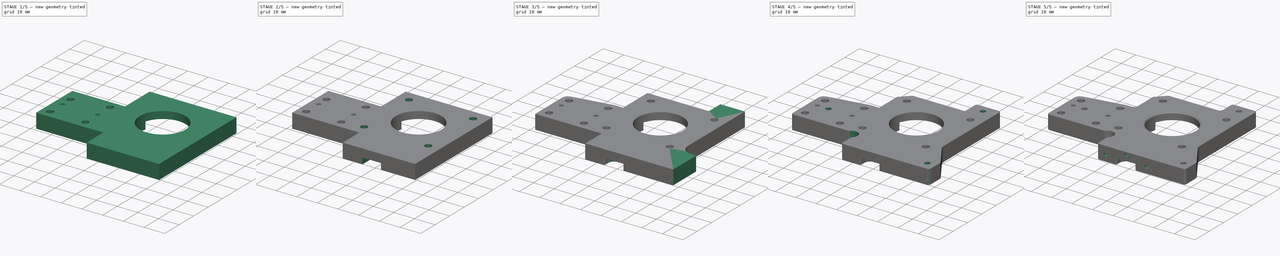
[diagram: build sequence overview — one tinted view per stage of 5, left to right]
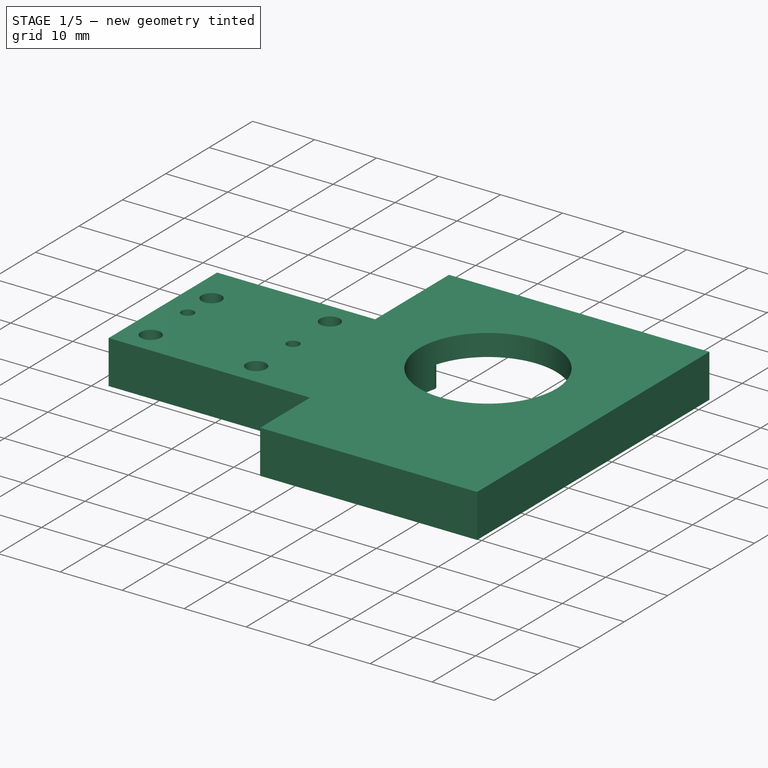
[diagram: stage 1 of 5 — iso view after this stage's code; geometry added in this stage tinted green]
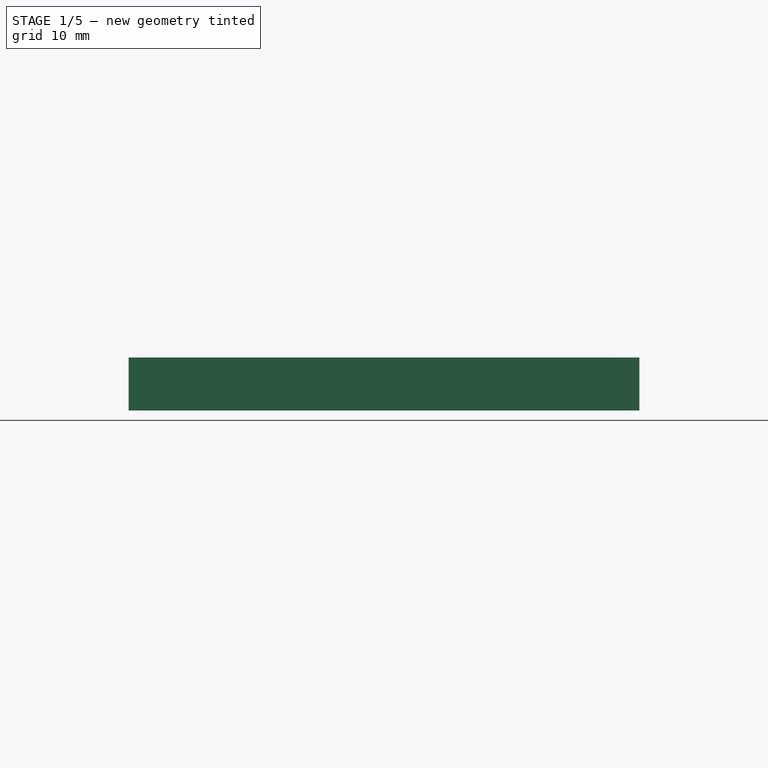
[diagram: stage 1 of 5 — front view after this stage's code; geometry added in this stage tinted green]
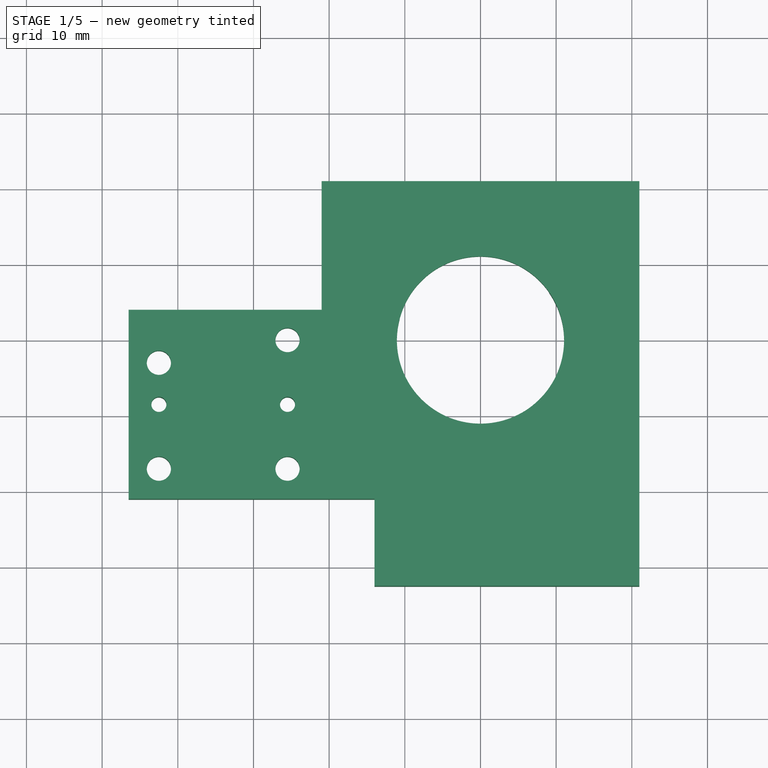
[diagram: stage 1 of 5 — top view after this stage's code; geometry added in this stage tinted green]
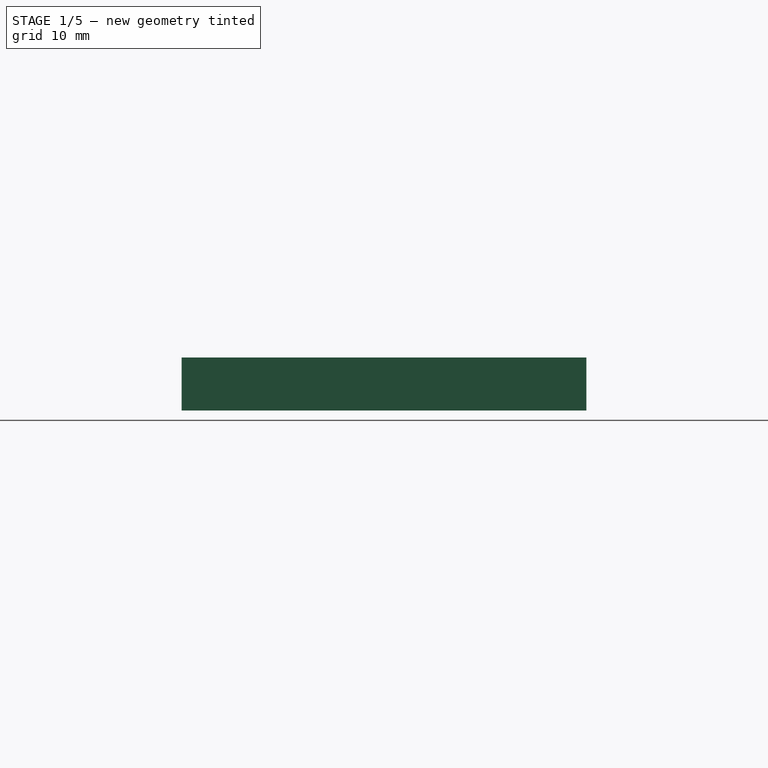
[diagram: stage 1 of 5 — right view after this stage's code; geometry added in this stage tinted green]
FCSTD DOCUMENT  (FreeCAD 1.2R45145 (Git))
Label: MotorMount
License: All rights reserved
LicenseURL: https://en.wikipedia.org/wiki/All_rights_reserved
objects: Sketcher::SketchObject×13, PartDesign::Fillet×13, PartDesign::Pocket×8, PartDesign::Chamfer×7, PartDesign::Pad×4, App::Point×1, PartDesign::PolarPattern×1, PartDesign::Hole×1, PartDesign::Body×1
note: 128 computed .brp shape members not serialized (recipe doc carries the construction recipe); baked Part::Feature solids carry a one-line shape summary decoded from their .brp

FEATURE [App::Point] Origin001
  Role = Origin
FEATURE [Sketcher::SketchObject] Sketch
  ArcFitTolerance = 1e-06
  AttachmentSupport = -> [Origin]
  ExternalTypes = [0]
  FullyConstrained = true
  MakeInternals = false
  MapMode = 5
  sketch-geometry (6):
    g0: LineSegment StartX=-21 StartY=-21 StartZ=0 EndX=21 EndY=-21 EndZ=0
    g1: LineSegment StartX=21 StartY=-21 StartZ=0 EndX=21 EndY=21 EndZ=0
    g2: LineSegment StartX=21 StartY=21 StartZ=0 EndX=-21 EndY=21 EndZ=0
    g3: LineSegment StartX=-21 StartY=21 StartZ=0 EndX=-21 EndY=-21 EndZ=0
    g4: GeomPoint [constr] X=0 Y=0 Z=0
    g5: Circle CenterX=0 CenterY=0 CenterZ=0 NormalX=0 NormalY=0 NormalZ=1 AngleXU=0 Radius=11.05
  constraints (14):
    c: Coincident(g0,g1)
    c: Coincident(g1,g2)
    c: Coincident(g2,g3)
    c: Coincident(g3,g0)
    c: Horizontal(g0)
    c: Horizontal(g2)
    c: Vertical(g1)
    c: Vertical(g3)
    c: Symmetric(g2,g0,g4)
    c: Coincident(g4,g-1)
    c: DistanceX(g2,g2) = 42
    c: DistanceY(g1,g1) = 42
    c: Coincident(g5,g4)
    c: Diameter(g5) = 22.1
FEATURE [PartDesign::Pad] Pad
  Direction = (0,0,1)
  Length = 7
  Length2 = 10
  Profile = -> Sketch
  ReferenceAxis = -> Sketch [N_Axis]
  Refine = true
  SideType = 0
  Suppressed = false
  Type = 0
  Type2 = 0
FEATURE [Sketcher::SketchObject] Sketch002
  ArcFitTolerance = 1e-06
  AttachmentSupport = -> [Pad]
  ExternalTypes = [0]
  FullyConstrained = true
  MakeInternals = false
  MapMode = 5
  Placement = pos=(0,0,0) rot=(1,0,0;3.14159rad)
  sketch-geometry (4):
    g0: LineSegment StartX=-31 StartY=-44 StartZ=0 EndX=9 EndY=-44 EndZ=0
    g1: LineSegment StartX=9 StartY=-44 StartZ=0 EndX=9 EndY=-4 EndZ=0
    g2: LineSegment StartX=9 StartY=-4 StartZ=0 EndX=-31 EndY=-4 EndZ=0
    g3: LineSegment StartX=-31 StartY=-4 StartZ=0 EndX=-31 EndY=-44 EndZ=0
  constraints (12):
    c: Horizontal(g0)
    c: Coincident(g1,g0)
    c: Vertical(g1)
    c: Distance(g1,g-2) = 9
    c: Distance(g2,g-1) = 4
    c: Horizontal(g2)
    c: Coincident(g3,g2)
    c: Coincident(g3,g0)
    c: Vertical(g3)
    c: DistanceX(g0,g0) = 40
    c: Equal(g0,g3)
    c: Coincident(g1,g2)
FEATURE [PartDesign::Pocket] Pocket001
  BaseFeature = -> Pad
  Direction = (0,0,1)
  Length = 3.5
  Length2 = 5
  Profile = -> Sketch002
  ReferenceAxis = -> Sketch002 [N_Axis]
  Refine = true
  SideType = 0
  Suppressed = false
  Type = 0
  Type2 = 0
FEATURE [Sketcher::SketchObject] Sketch003
  ArcFitTolerance = 1e-06
  AttachmentSupport = -> [Origin]
  ExternalGeometry = -> [Pocket001]
  ExternalTypes = [0]
  FullyConstrained = false
  MakeInternals = false
  MapMode = 5
  sketch-geometry (3):
    g0: LineSegment StartX=-21 StartY=4 StartZ=0 EndX=-46.5 EndY=4 EndZ=0
    g1: LineSegment StartX=-46.5 StartY=4 StartZ=0 EndX=-46.5 EndY=-21 EndZ=0
    g2: LineSegment StartX=-46.5 StartY=-21 StartZ=0 EndX=-21 EndY=-21 EndZ=0
  constraints (8):
    c: Horizontal(g0)
    c: Vertical(g1)
    c: Coincident(g2,g1)
    c: Horizontal(g2)
    c: Coincident(g0,g1)
    c: DistanceX(g0,g0) = 25.5
    c: Coincident(g0,g-3)
    c: DistanceY(g1,g1) = 25
FEATURE [PartDesign::Pad] Pad001
  BaseFeature = -> Pocket001
  Direction = (0,0,1)
  Length = 7
  Length2 = 10
  Profile = -> Sketch003
  ReferenceAxis = -> Sketch003 [N_Axis]
  Refine = true
  SideType = 0
  Suppressed = false
  Type = 0
  Type2 = 0
FEATURE [Sketcher::SketchObject] Sketch004
  ArcFitTolerance = 1e-06
  AttachmentSupport = -> [Pad001]
  ExternalGeometry = -> [Pad001]
  ExternalTypes = [0]
  FullyConstrained = true
  MakeInternals = false
  MapMode = 5
  Placement = pos=(0,0,0) rot=(1,0,0;3.14159rad)
  sketch-geometry (13):
    g0: Circle CenterX=-42.5 CenterY=17 CenterZ=0 NormalX=0 NormalY=0 NormalZ=1 AngleXU=0 Radius=1.6
    g1: Circle CenterX=-25.5 CenterY=17 CenterZ=0 NormalX=0 NormalY=0 NormalZ=1 AngleXU=0 Radius=1.6
    g2: Circle CenterX=-42.5 CenterY=3 CenterZ=0 NormalX=0 NormalY=0 NormalZ=1 AngleXU=0 Radius=1.6
    g3: Circle CenterX=-25.5 CenterY=0 CenterZ=0 NormalX=0 NormalY=0 NormalZ=1 AngleXU=0 Radius=1.6
    g4: LineSegment [constr] StartX=-42.5 StartY=17 StartZ=0 EndX=-42.5 EndY=0 EndZ=0
    g5: LineSegment [constr] StartX=-42.5 StartY=0 StartZ=0 EndX=-25.5 EndY=0 EndZ=0
    g6: LineSegment [constr] StartX=-25.5 StartY=0 StartZ=0 EndX=-25.5 EndY=17 EndZ=0
    g7: LineSegment [constr] StartX=-25.5 StartY=17 StartZ=0 EndX=-42.5 EndY=17 EndZ=0
    g8: GeomPoint [constr] X=-42.5 Y=8.5 Z=0
    g9: GeomPoint [constr] X=-46.5 Y=8.5 Z=0
    g10: LineSegment [constr] StartX=-46.5 StartY=8.5 StartZ=0 EndX=-42.5 EndY=8.5 EndZ=0
    g11: Circle CenterX=-42.5 CenterY=8.5 CenterZ=0 NormalX=0 NormalY=0 NormalZ=1 AngleXU=0 Radius=1
    g12: Circle CenterX=-25.5 CenterY=8.5 CenterZ=0 NormalX=0 NormalY=0 NormalZ=1 AngleXU=0 Radius=1
  constraints (29):
    c: Equal(g0,g1)
    c: Equal(g1,g2)
    c: Equal(g2,g3)
    c: Diameter(g0) = 3.2
    c: DistanceX(g0,g1) = 17
    c: Coincident(g4,g0)
    c: Vertical(g4)
    c: Coincident(g5,g3)
    c: Horizontal(g5)
    c: Coincident(g6,g3)
    c: Coincident(g6,g1)
    c: Coincident(g7,g1)
    c: Coincident(g7,g0)
    c: Horizontal(g7)
    c: Vertical(g6)
    c: Coincident(g10,g9)
    c: Coincident(g10,g8)
    c: Horizontal(g10)
    c: Symmetric(g6,g6,g12)
    c: Coincident(g11,g8)
    c: Equal(g11,g12)
    c: Diameter(g12) = 2
    c: Symmetric(g-3,g-3,g9)
    c: Distance(g-3,g4) = 4
    c: Distance(g5,g7) = 17
    c: Coincident(g4,g5)
    c: Symmetric(g4,g4,g8)
    c: Distance(g2,g5) = 3
    c: PointOnObject(g2,g4)
FEATURE [PartDesign::Fillet] Fillet
  Base = -> Pad001 [Edge4,Edge2]
  BaseFeature = -> Pad001
  Radius = 1
  Refine = true
  SupportTransform = false
  Suppressed = false
  UseAllEdges = false
FEATURE [PartDesign::Pocket] Pocket002  label="Pocket_BaseMountHoles"
  BaseFeature = -> Fillet
  Direction = (0,0,1)
  Length = 5
  Length2 = 5
  Profile = -> Sketch004
  ReferenceAxis = -> Sketch004 [N_Axis]
  Refine = true
  SideType = 0
  Suppressed = false
  Type = 1
  Type2 = 0
FEATURE [PartDesign::Chamfer] Chamfer001
  Angle = 45
  Base = -> Pocket002 [Edge21,Edge23,Edge19,Edge18]
  BaseFeature = -> Pocket002
  ChamferType = 0
  FlipDirection = false
  Refine = true
  Size = 1.8
  Size2 = 1
  SupportTransform = false
  Suppressed = false
  UseAllEdges = false
FEATURE [Sketcher::SketchObject] Sketch005
  ArcFitTolerance = 1e-06
  AttachmentSupport = -> [Origin]
  ExternalGeometry = -> [Chamfer001]
  ExternalTypes = [0]
  FullyConstrained = true
  MakeInternals = false
  MapMode = 5
  sketch-geometry (4):
    g0: LineSegment StartX=-14 StartY=-32.5 StartZ=0 EndX=21 EndY=-32.5 EndZ=0
    g1: LineSegment StartX=21 StartY=-32.5 StartZ=0 EndX=21 EndY=-21 EndZ=0
    g2: LineSegment StartX=21 StartY=-21 StartZ=0 EndX=-14 EndY=-21 EndZ=0
    g3: LineSegment StartX=-14 StartY=-32.5 StartZ=0 EndX=-14 EndY=-21 EndZ=0
  constraints (11):
    c: Coincident(g0,g1)
    c: Coincident(g1,g2)
    c: Vertical(g1)
    c: Horizontal(g0)
    c: Horizontal(g2)
    c: Distance(g-1,g0) = 32.5
    c: Coincident(g3,g0)
    c: Vertical(g3)
    c: Coincident(g2,g3)
    c: Distance(g-2,g3) = 14
    c: Coincident(g1,g-4)
FEATURE [PartDesign::Pad] Pad002
  BaseFeature = -> Chamfer001
  Direction = (0,0,1)
  Length = 7
  Length2 = 10
  Profile = -> Sketch005
  ReferenceAxis = -> Sketch005 [N_Axis]
  Refine = true
  SideType = 0
  Suppressed = false
  Type = 0
  Type2 = 0
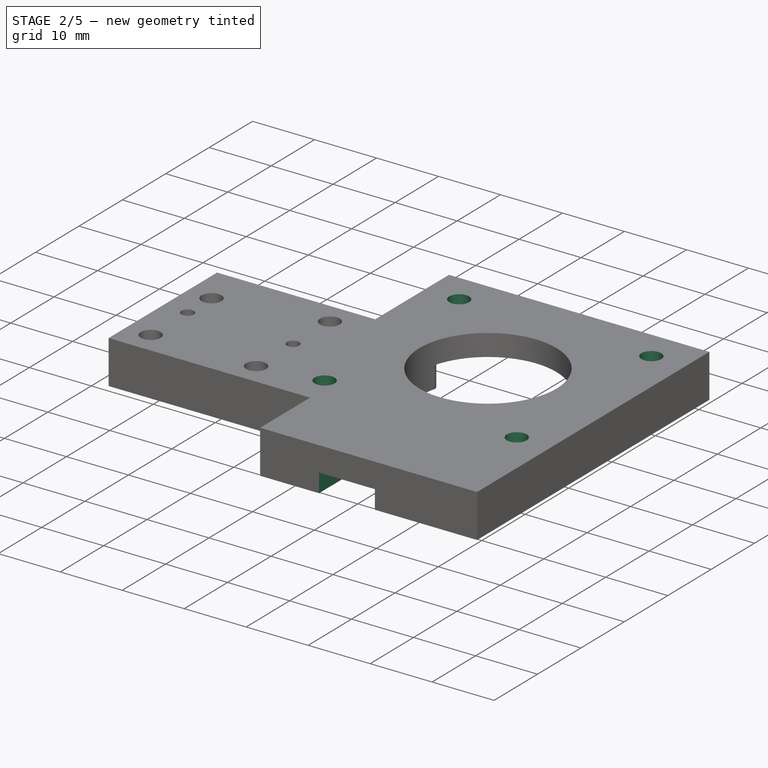
[diagram: stage 2 of 5 — iso view after this stage's code; geometry added in this stage tinted green]
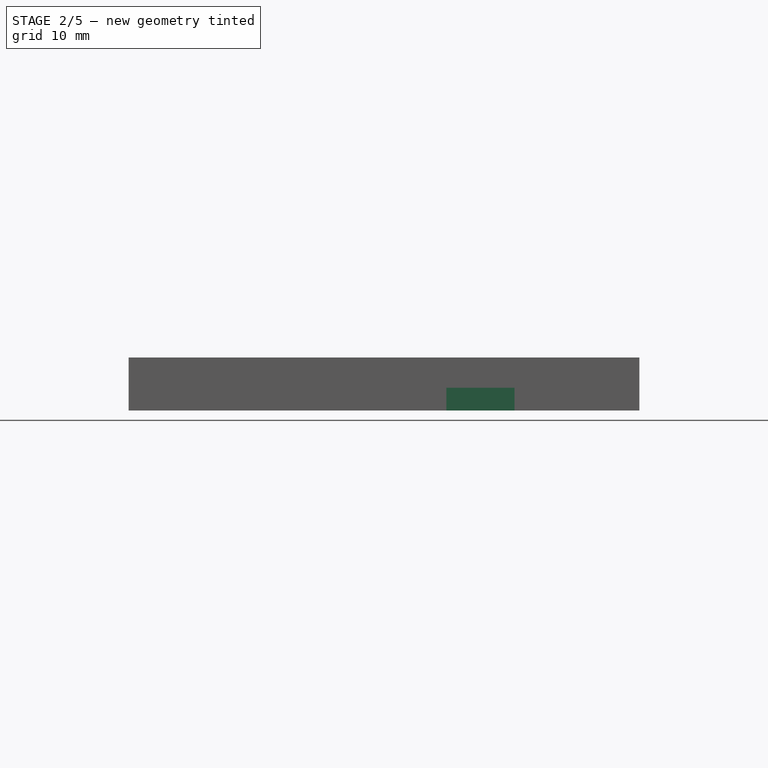
[diagram: stage 2 of 5 — front view after this stage's code; geometry added in this stage tinted green]
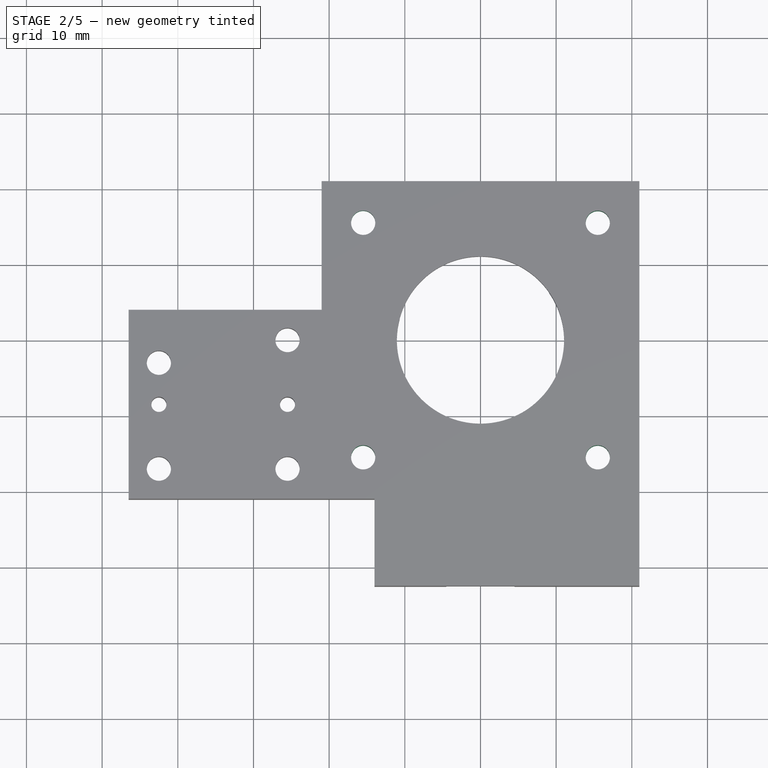
[diagram: stage 2 of 5 — top view after this stage's code; geometry added in this stage tinted green]
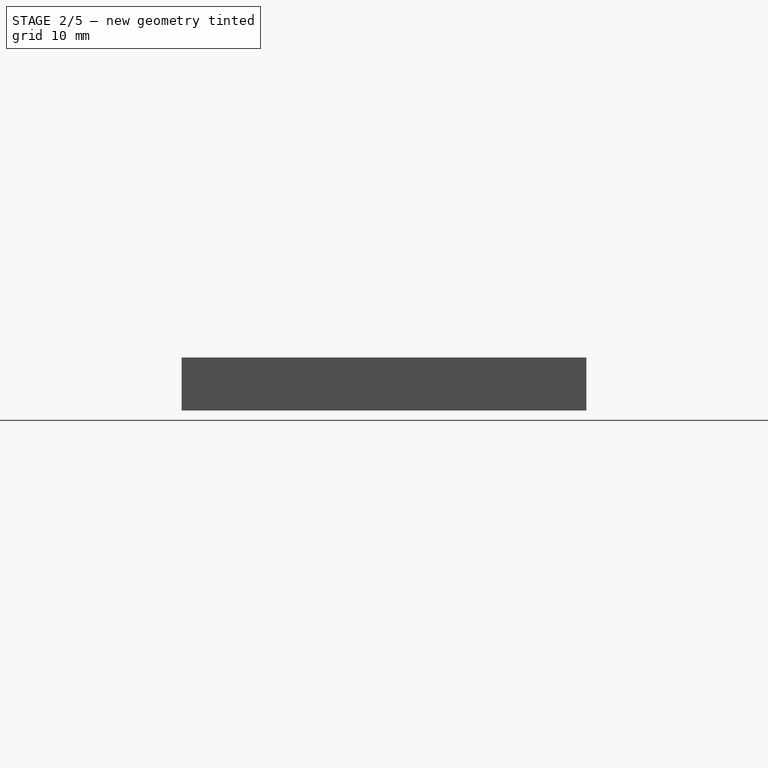
[diagram: stage 2 of 5 — right view after this stage's code; geometry added in this stage tinted green]
FEATURE [Sketcher::SketchObject] Sketch007
  ArcFitTolerance = 1e-06
  AttachmentSupport = -> [Pad002]
  ExternalTypes = [0]
  FullyConstrained = true
  MakeInternals = false
  MapMode = 5
  Placement = pos=(0,0,0) rot=(1,0,0;3.14159rad)
  sketch-geometry (1):
    g0: Circle CenterX=-15.5 CenterY=15.5 CenterZ=0 NormalX=0 NormalY=0 NormalZ=1 AngleXU=0 Radius=1.6
  constraints (3):
    c: Diameter(g0) = 3.2
    c: DistanceX(g0,g-1) = 15.5
    c: DistanceY(g-1,g0) = 15.5
FEATURE [PartDesign::Pocket] Pocket  label="Pocket_MotorScrewHole"
  BaseFeature = -> Pad002
  Direction = (0,0,1)
  Length = 4
  Length2 = 5
  Profile = -> Sketch007
  ReferenceAxis = -> Sketch007 [N_Axis]
  Refine = true
  SideType = 0
  Suppressed = false
  Type = 1
  Type2 = 0
FEATURE [PartDesign::Chamfer] Chamfer002
  Angle = 45
  Base = -> Pocket [Edge20]
  BaseFeature = -> Pocket
  ChamferType = 0
  FlipDirection = false
  Refine = true
  Size = 1.8
  Size2 = 1
  SupportTransform = false
  Suppressed = false
  UseAllEdges = false
FEATURE [PartDesign::PolarPattern] PolarPattern
  Angle = 360
  Axis = -> Z_Axis
  BaseFeature = -> Chamfer002
  Mode = 0
  Occurrences = 4
  Offset = 120
  Originals = -> [Pocket,Chamfer002]
  Refine = true
  SpacingPattern = [0]
  Spacings = [-1,-1,-1]
  Suppressed = false
  TransformMode = 0
FEATURE [Sketcher::SketchObject] Sketch008
  ArcFitTolerance = 1e-06
  AttachmentSupport = -> [PolarPattern]
  ExternalTypes = [0]
  FullyConstrained = false
  MakeInternals = false
  MapMode = 5
  Placement = pos=(0,0,0) rot=(1,0,0;3.14159rad)
  sketch-geometry (5):
    g0: LineSegment [constr] StartX=0 StartY=0 StartZ=0 EndX=-13.1101 EndY=14.5603 EndZ=0
    g1: LineSegment [constr] StartX=0 StartY=0 StartZ=0 EndX=11.8102 EndY=13.1165 EndZ=0
    g2: ArcOfCircle CenterX=0 CenterY=0 CenterZ=0 NormalX=0 NormalY=0 NormalZ=1 AngleXU=0 Radius=16 StartAngle=0.775217 EndAngle=2.36638
    g3: LineSegment StartX=0 StartY=-1.49448 StartZ=0 EndX=11.4283 EndY=11.1979 EndZ=0
    g4: LineSegment StartX=0 StartY=-1.49448 StartZ=0 EndX=-11.4283 EndY=11.1979 EndZ=0
  constraints (13):
    c: Coincident(g0,g-1)
    c: Coincident(g1,g0)
    c: Coincident(g2,g0)
    c: Angle(g1,g-2) = 0.733038
    c: Angle(g1,g0) = 1.46608
    c: PointOnObject(g3,g-2)
    c: Coincident(g4,g3)
    c: Parallel(g4,g0)
    c: Parallel(g3,g1)
    c: Coincident(g3,g2)
    c: Radius(g2) = 16
    c: Coincident(g4,g2)
    c: Distance(g0,g4) = 1
FEATURE [PartDesign::Pocket] Pocket004  label="Pocket_Arc"
  BaseFeature = -> PolarPattern
  Direction = (0,0,1)
  Length = 2
  Length2 = 5
  Profile = -> Sketch008
  ReferenceAxis = -> Sketch008 [N_Axis]
  Refine = true
  SideType = 0
  Suppressed = false
  Type = 0
  Type2 = 0
FEATURE [PartDesign::Fillet] Fillet004
  Base = -> Pocket004 [Edge59,Edge61]
  BaseFeature = -> Pocket004
  Radius = 1.6
  Refine = true
  SupportTransform = false
  Suppressed = false
  UseAllEdges = false
FEATURE [PartDesign::Fillet] Fillet005
  Base = -> Fillet004 [Edge38,Edge29]
  BaseFeature = -> Fillet004
  Radius = 1
  Refine = true
  SupportTransform = false
  Suppressed = false
  UseAllEdges = false
FEATURE [Sketcher::SketchObject] Sketch009
  ArcFitTolerance = 1e-06
  AttachmentSupport = -> [Fillet005]
  ExternalTypes = [0]
  FullyConstrained = false
  MakeInternals = false
  MapMode = 5
  Placement = pos=(0,0,0) rot=(1,0,0;3.14159rad)
  sketch-geometry (5):
    g0: LineSegment StartX=-4.5 StartY=48.3086 StartZ=0 EndX=-4.5 EndY=27 EndZ=0
    g1: LineSegment StartX=-4.5 StartY=27 StartZ=0 EndX=4.5 EndY=27 EndZ=0
    g2: LineSegment StartX=4.5 StartY=27 StartZ=0 EndX=4.5 EndY=48.3086 EndZ=0
    g3: LineSegment StartX=4.5 StartY=48.3086 StartZ=0 EndX=-4.5 EndY=48.3086 EndZ=0
    g4: GeomPoint [constr] X=0 Y=37.6543 Z=0
  constraints (12):
    c: Coincident(g0,g1)
    c: Coincident(g1,g2)
    c: Coincident(g2,g3)
    c: Coincident(g3,g0)
    c: Vertical(g0)
    c: Vertical(g2)
    c: Horizontal(g1)
    c: Horizontal(g3)
    c: Symmetric(g2,g0,g4)
    c: PointOnObject(g4,g-2)
    c: Distance(g-1,g1) = 27
    c: DistanceX(g3,g3) = 9
FEATURE [PartDesign::Pocket] Pocket005  label="Pocket_EncoderCutout"
  BaseFeature = -> Fillet005
  Direction = (0,0,1)
  Length = 3
  Length2 = 5
  Profile = -> Sketch009
  ReferenceAxis = -> Sketch009 [N_Axis]
  Refine = true
  SideType = 0
  Suppressed = false
  Type = 0
  Type2 = 0
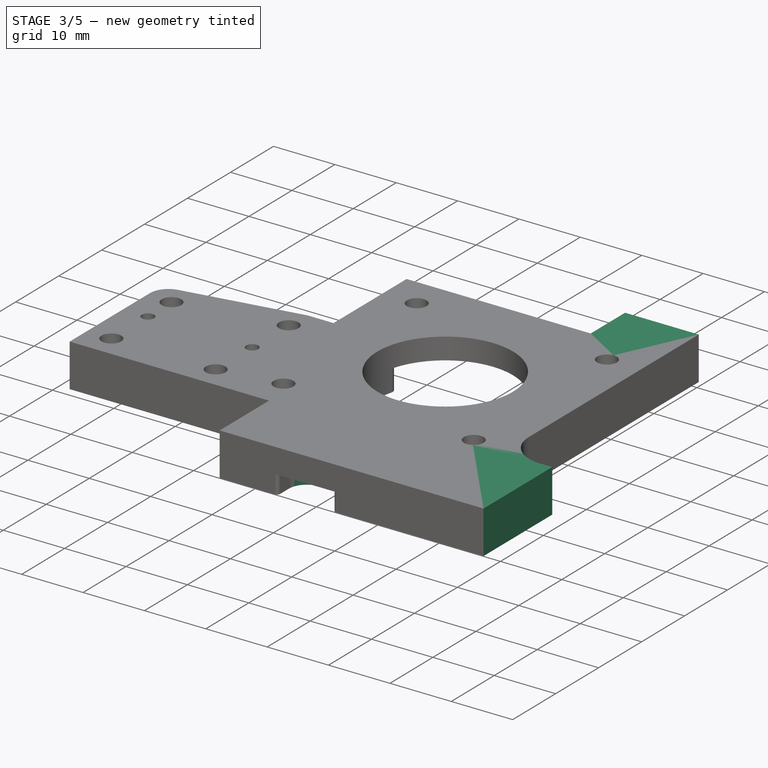
[diagram: stage 3 of 5 — iso view after this stage's code; geometry added in this stage tinted green]
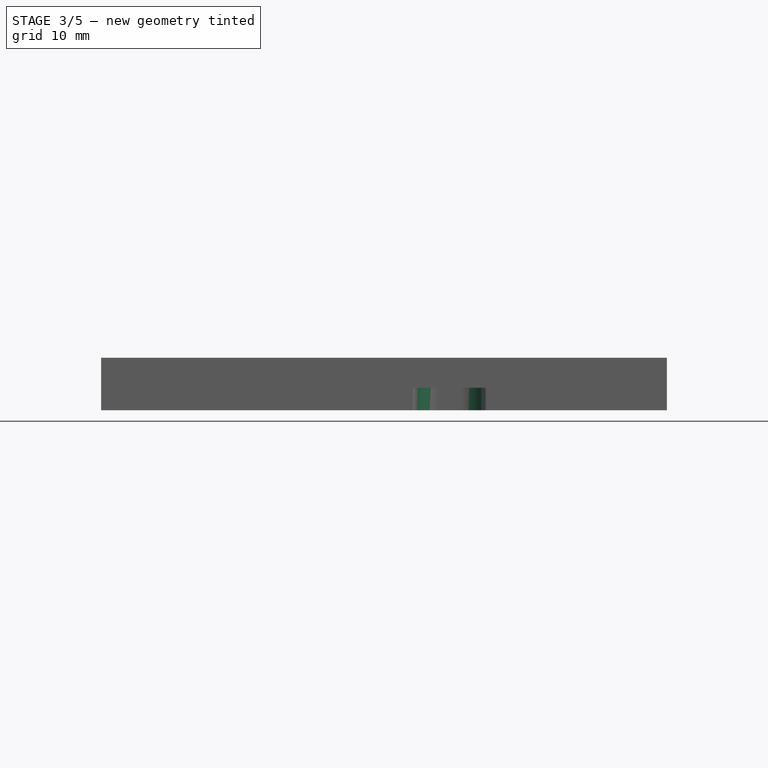
[diagram: stage 3 of 5 — front view after this stage's code; geometry added in this stage tinted green]
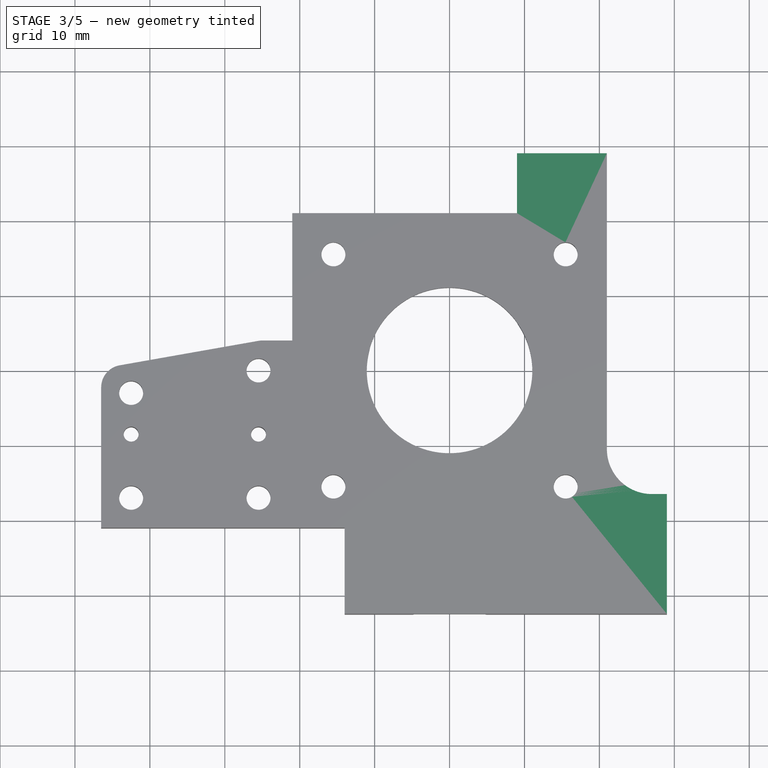
[diagram: stage 3 of 5 — top view after this stage's code; geometry added in this stage tinted green]
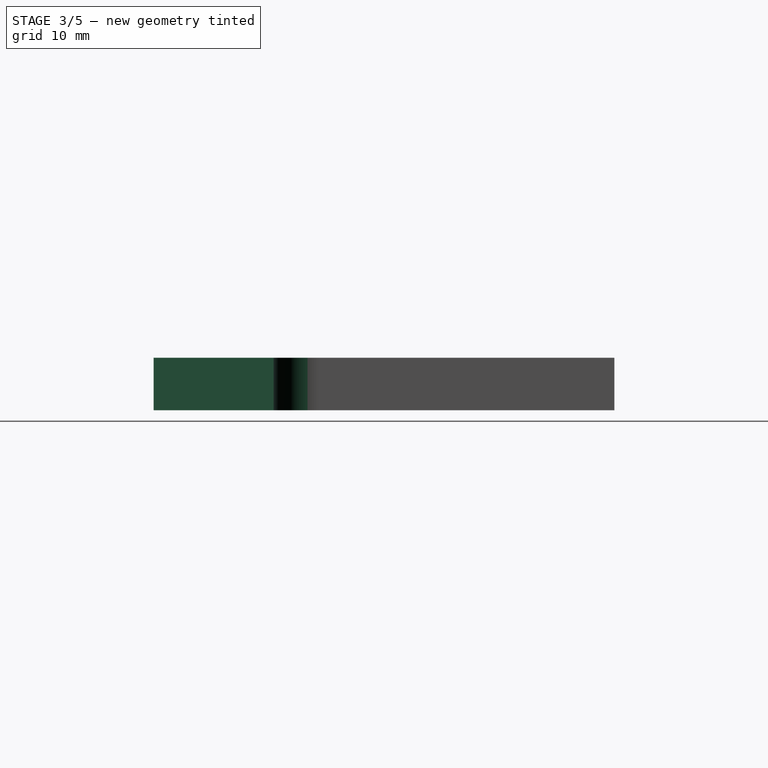
[diagram: stage 3 of 5 — right view after this stage's code; geometry added in this stage tinted green]
FEATURE [Sketcher::SketchObject] Sketch010
  ArcFitTolerance = 1e-06
  AttachmentSupport = -> [Origin]
  ExternalGeometry = -> [Pocket005]
  ExternalTypes = [0,0,0]
  FullyConstrained = true
  MakeInternals = false
  MapMode = 5
  sketch-geometry (8):
    g0: LineSegment StartX=21 StartY=21 StartZ=0 EndX=21 EndY=29 EndZ=0
    g1: LineSegment StartX=21 StartY=29 StartZ=0 EndX=9 EndY=29 EndZ=0
    g2: LineSegment StartX=9 StartY=29 StartZ=0 EndX=9 EndY=21 EndZ=0
    g3: LineSegment StartX=9 StartY=21 StartZ=0 EndX=21 EndY=21 EndZ=0
    g4: LineSegment StartX=21 StartY=-32.5 StartZ=0 EndX=29 EndY=-32.5 EndZ=0
    g5: LineSegment StartX=29 StartY=-32.5 StartZ=0 EndX=29 EndY=-16.5 EndZ=0
    g6: LineSegment StartX=29 StartY=-16.5 StartZ=0 EndX=21 EndY=-16.5 EndZ=0
    g7: LineSegment StartX=21 StartY=-16.5 StartZ=0 EndX=21 EndY=-32.5 EndZ=0
  constraints (22):
    c: Coincident(g0,g1)
    c: Coincident(g1,g2)
    c: Coincident(g2,g3)
    c: Coincident(g3,g0)
    c: Vertical(g0)
    c: Vertical(g2)
    c: Horizontal(g1)
    c: Horizontal(g3)
    c: Coincident(g0,g-3)
    c: PointOnObject(g-4,g2)
    c: DistanceY(g0,g0) = 8
    c: Coincident(g4,g5)
    c: Coincident(g5,g6)
    c: Coincident(g6,g7)
    c: Coincident(g7,g4)
    c: Horizontal(g4)
    c: Horizontal(g6)
    c: Vertical(g5)
    c: Vertical(g7)
    c: Coincident(g4,g-5)
    c: DistanceX(g4,g4) = 8
    c: DistanceY(g5,g5) = 16
FEATURE [PartDesign::Pad] Pad003
  BaseFeature = -> Pocket005
  Direction = (0,0,1)
  Length = 7
  Length2 = 10
  Profile = -> Sketch010
  ReferenceAxis = -> Sketch010 [N_Axis]
  Refine = true
  SideType = 0
  Suppressed = false
  Type = 0
  Type2 = 0
FEATURE [PartDesign::Fillet] Fillet006
  Base = -> Pad003 [Edge91]
  BaseFeature = -> Pad003
  Radius = 6
  Refine = true
  SupportTransform = false
  Suppressed = false
  UseAllEdges = false
FEATURE [PartDesign::Chamfer] Chamfer006
  Angle = 80
  Base = -> Fillet006 [Edge89]
  BaseFeature = -> Fillet006
  ChamferType = 2
  FlipDirection = false
  Refine = true
  Size = 3.75
  Size2 = 1
  SupportTransform = false
  Suppressed = false
  UseAllEdges = false
FEATURE [PartDesign::Fillet] Fillet018
  Base = -> Chamfer006 [Edge41,Edge38]
  BaseFeature = -> Chamfer006
  Radius = 3
  Refine = true
  SupportTransform = false
  Suppressed = false
  UseAllEdges = false
FEATURE [PartDesign::Fillet] Fillet014
  Base = -> Fillet018 [Edge66,Edge62]
  BaseFeature = -> Fillet018
  Radius = 3
  Refine = true
  SupportTransform = false
  Suppressed = false
  UseAllEdges = false
FEATURE [PartDesign::Fillet] Fillet015
  Base = -> Fillet014 [Edge43,Edge48]
  BaseFeature = -> Fillet014
  Radius = 0.5
  Refine = true
  SupportTransform = false
  Suppressed = false
  UseAllEdges = false
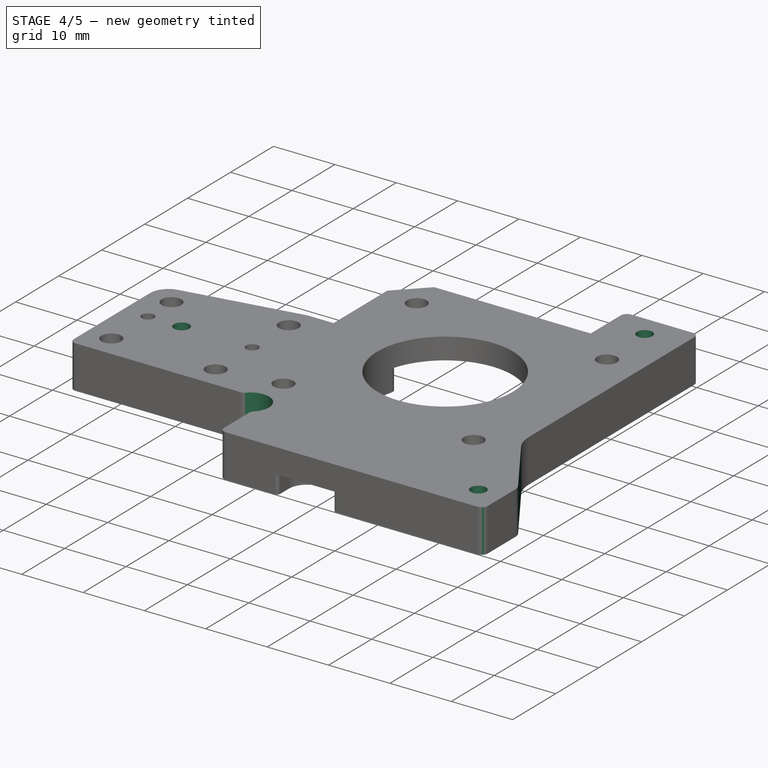
[diagram: stage 4 of 5 — iso view after this stage's code; geometry added in this stage tinted green]
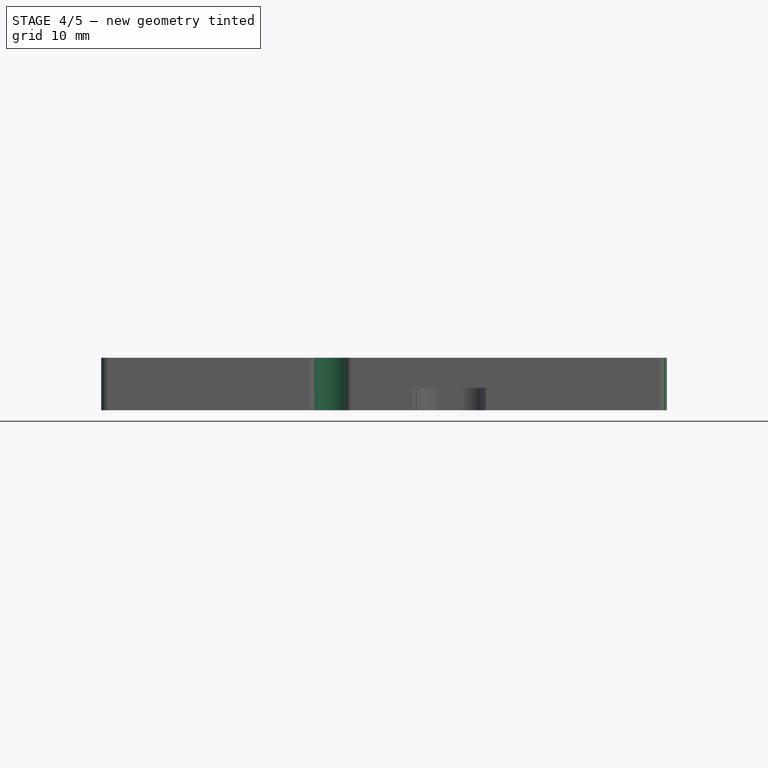
[diagram: stage 4 of 5 — front view after this stage's code; geometry added in this stage tinted green]
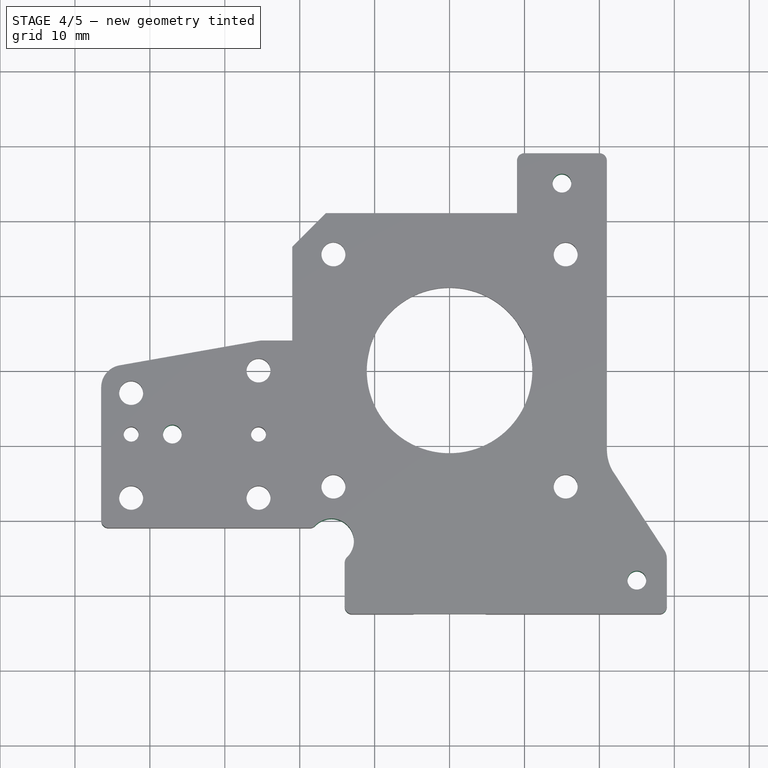
[diagram: stage 4 of 5 — top view after this stage's code; geometry added in this stage tinted green]
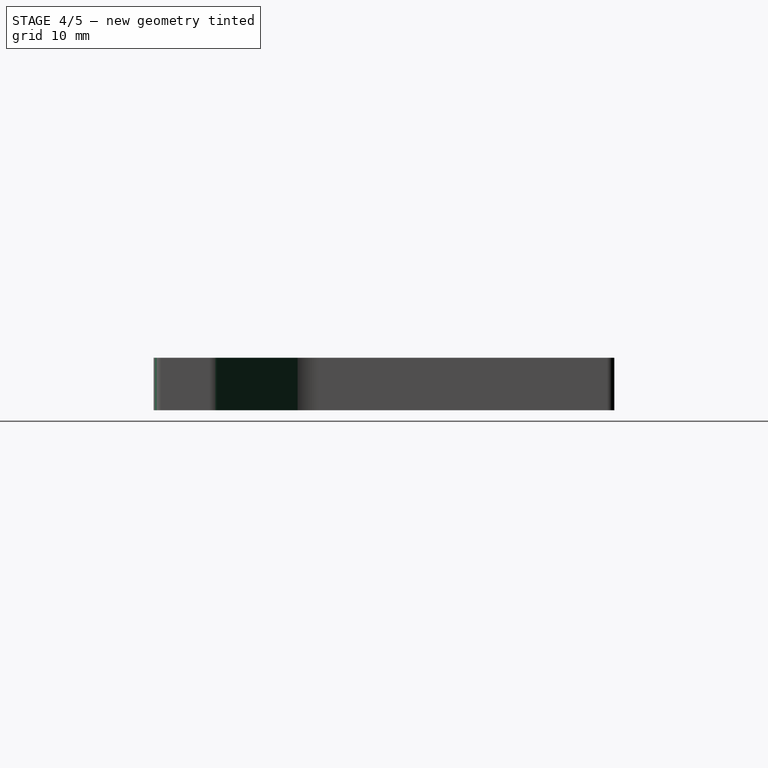
[diagram: stage 4 of 5 — right view after this stage's code; geometry added in this stage tinted green]
FEATURE [Sketcher::SketchObject] Sketch012
  ArcFitTolerance = 1e-06
  AttachmentSupport = -> [Fillet015]
  ExternalGeometry = -> [Fillet015]
  ExternalTypes = [0]
  FullyConstrained = true
  MakeInternals = false
  MapMode = 5
  Placement = pos=(0,0,0) rot=(1,0,0;3.14159rad)
  sketch-geometry (5):
    g0: ArcOfCircle CenterX=-15.7678 CenterY=22.7678 CenterZ=0 NormalX=0 NormalY=0 NormalZ=1 AngleXU=0 Radius=3 StartAngle=3.92699 EndAngle=7.06858
    g1: ArcOfCircle CenterX=-22.8388 CenterY=29.8388 CenterZ=0 NormalX=0 NormalY=0 NormalZ=1 AngleXU=0 Radius=3 StartAngle=0.785398 EndAngle=3.92699
    g2: LineSegment StartX=-17.8891 StartY=20.6464 StartZ=0 EndX=-24.9602 EndY=27.7175 EndZ=0
    g3: LineSegment StartX=-13.6464 StartY=24.8891 StartZ=0 EndX=-20.7175 EndY=31.9602 EndZ=0
    g4: LineSegment [constr] StartX=-15.7678 StartY=22.7678 StartZ=0 EndX=-14 EndY=21 EndZ=0
  constraints (12):
    c: Tangent(g0,g2) = 1.5708
    c: Tangent(g0,g3) = -1.5708
    c: Tangent(g1,g2) = 1.5708
    c: Tangent(g1,g3) = -1.5708
    c: Equal(g0,g1)
    c: Radius(g0) = 3
    c: Coincident(g4,g0)
    c: Angle(g4,g-1) = 0.785398
    c: Distance(g4,g4) = 2.5
    c: Distance(g3,g3) = 10
    c: PointOnObject(g1,g4)
    c: Coincident(g4,g-3)
FEATURE [PartDesign::Pocket] Pocket007
  BaseFeature = -> Fillet015
  Direction = (0,0,1)
  Length = 9
  Length2 = 5
  Profile = -> Sketch012
  ReferenceAxis = -> Sketch012 [N_Axis]
  Refine = true
  SideType = 0
  Suppressed = false
  Type = 0
  Type2 = 0
FEATURE [PartDesign::Fillet] Fillet017
  Base = -> Pocket007 [Edge127,Edge122]
  BaseFeature = -> Pocket007
  Radius = 1
  Refine = true
  SupportTransform = false
  Suppressed = false
  UseAllEdges = false
FEATURE [Sketcher::SketchObject] Sketch011
  ArcFitTolerance = 1e-06
  AttachmentSupport = -> [Fillet017]
  ExternalGeometry = -> [Fillet017]
  ExternalTypes = [0,0]
  FullyConstrained = true
  MakeInternals = false
  MapMode = 5
  Placement = pos=(0,0,0) rot=(1,0,0;3.14159rad)
  sketch-geometry (5):
    g0: Circle CenterX=25 CenterY=28 CenterZ=0 NormalX=0 NormalY=0 NormalZ=1 AngleXU=0 Radius=1.25
    g1: Circle CenterX=15 CenterY=-25 CenterZ=0 NormalX=0 NormalY=0 NormalZ=1 AngleXU=0 Radius=1.25
    g2: Circle CenterX=-37 CenterY=8.5 CenterZ=0 NormalX=0 NormalY=0 NormalZ=1 AngleXU=0 Radius=1.25
    g3: LineSegment [constr] StartX=-42.5 StartY=8.5 StartZ=0 EndX=-25.5 EndY=8.5 EndZ=0
    g4: Circle [constr] CenterX=-37 CenterY=8.5 CenterZ=0 NormalX=0 NormalY=0 NormalZ=1 AngleXU=0 Radius=4
  constraints (14):
    c: Diameter(g0) = 2.5
    c: Equal(g2,g0)
    c: Equal(g0,g1)
    c: DistanceX(g-1,g1) = 15
    c: DistanceY(g1,g-1) = 25
    c: DistanceX(g-1,g0) = 25
    c: DistanceY(g-1,g0) = 28
    c: DistanceX(g2,g-1) = 37
    c: Coincident(g3,g-4)
    c: Coincident(g3,g-3)
    c: PointOnObject(g2,g3)
    c: Distance(g-1,g3) = 8.5
    c: Coincident(g4,g2)
    c: Diameter(g4) = 8
FEATURE [PartDesign::Pocket] Pocket006  label="Pocket_MountHoles"
  BaseFeature = -> Fillet017
  Direction = (0,0,1)
  Length = 5
  Length2 = 5
  Profile = -> Sketch011
  ReferenceAxis = -> Sketch011 [N_Axis]
  Refine = true
  SideType = 0
  Suppressed = false
  Type = 1
  Type2 = 0
FEATURE [PartDesign::Chamfer] Chamfer004
  Angle = 45
  Base = -> Pocket006 [Edge125]
  BaseFeature = -> Pocket006
  ChamferType = 0
  FlipDirection = false
  Refine = true
  Size = 8
  Size2 = 1
  SupportTransform = false
  Suppressed = false
  UseAllEdges = false
FEATURE [PartDesign::Fillet] Fillet011
  Base = -> Chamfer004 [Edge52]
  BaseFeature = -> Chamfer004
  Radius = 2
  Refine = true
  SupportTransform = false
  Suppressed = false
  UseAllEdges = false
FEATURE [PartDesign::Fillet] Fillet019
  Base = -> Fillet011 [Edge73,Edge77,Edge129,Edge59,Edge54]
  BaseFeature = -> Fillet011
  Radius = 1
  Refine = true
  SupportTransform = false
  Suppressed = false
  UseAllEdges = false
FEATURE [PartDesign::Chamfer] Chamfer
  Angle = 45
  Base = -> Fillet019 [Edge195]
  BaseFeature = -> Fillet019
  ChamferType = 0
  FlipDirection = false
  Refine = true
  Size = 4.5
  Size2 = 1
  SupportTransform = false
  Suppressed = false
  UseAllEdges = false
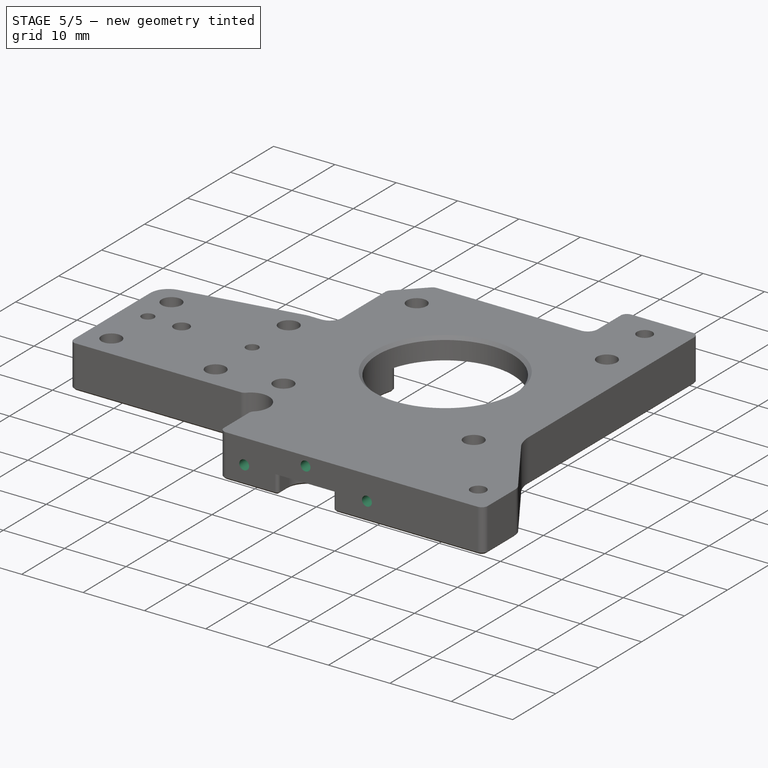
[diagram: stage 5 of 5 — iso view after this stage's code; geometry added in this stage tinted green]
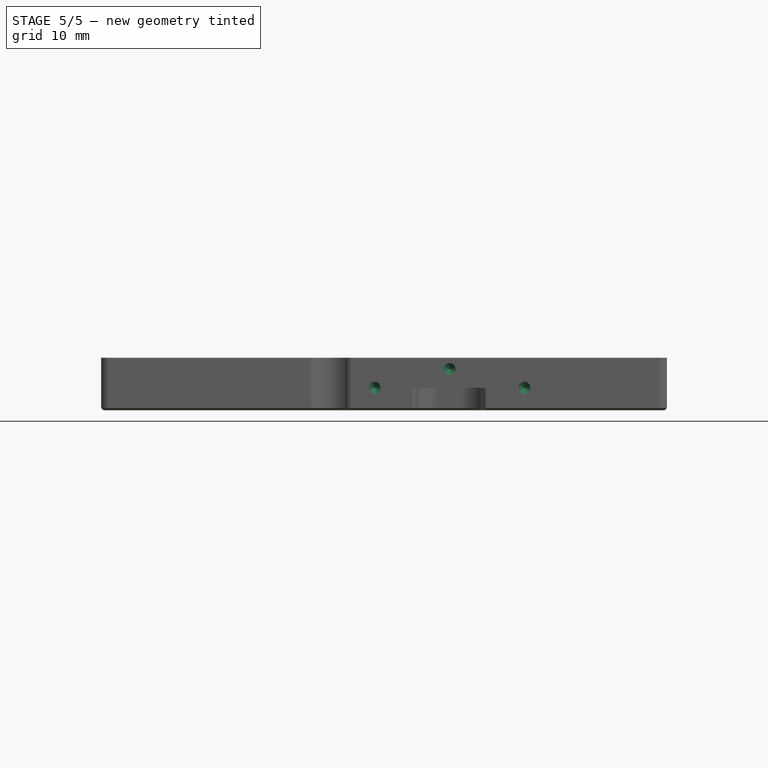
[diagram: stage 5 of 5 — front view after this stage's code; geometry added in this stage tinted green]
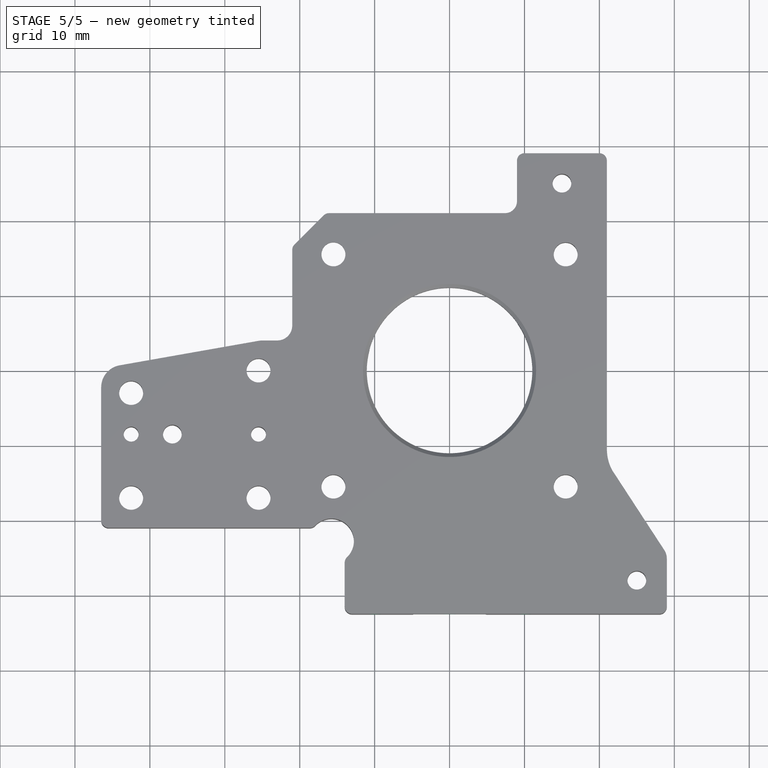
[diagram: stage 5 of 5 — top view after this stage's code; geometry added in this stage tinted green]
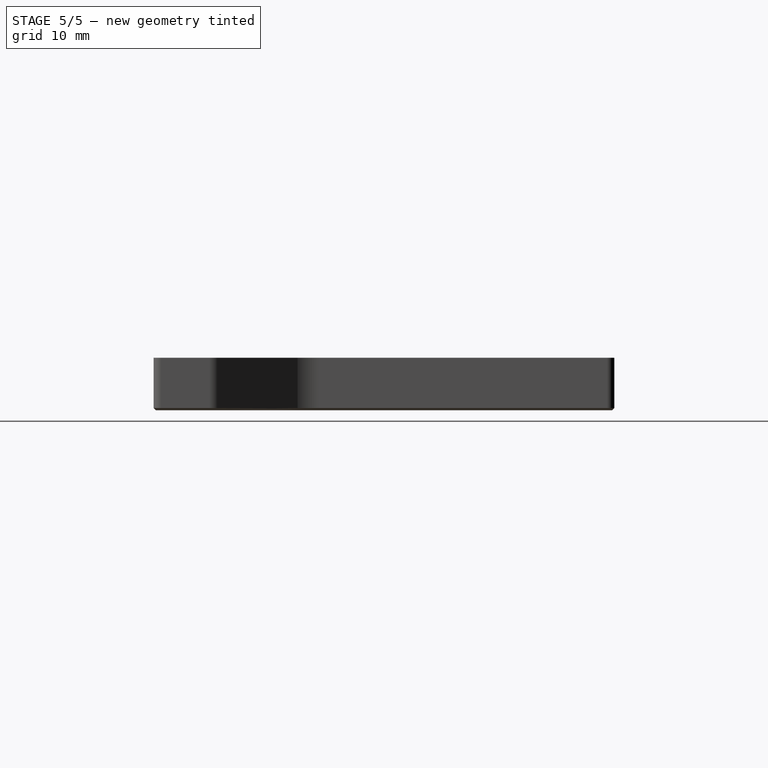
[diagram: stage 5 of 5 — right view after this stage's code; geometry added in this stage tinted green]
FEATURE [PartDesign::Fillet] Fillet012
  Base = -> Chamfer [Edge45]
  BaseFeature = -> Chamfer
  Radius = 1.6
  Refine = true
  SupportTransform = false
  Suppressed = false
  UseAllEdges = false
FEATURE [PartDesign::Fillet] Fillet013
  Base = -> Fillet012 [Edge50,Edge46]
  BaseFeature = -> Fillet012
  Radius = 1
  Refine = true
  SupportTransform = false
  Suppressed = false
  UseAllEdges = false
FEATURE [PartDesign::Chamfer] Chamfer007
  Angle = 45
  Base = -> Fillet013 [Edge95]
  BaseFeature = -> Fillet013
  ChamferType = 0
  FlipDirection = false
  Refine = true
  Size = 0.3
  Size2 = 1
  SupportTransform = false
  Suppressed = false
  UseAllEdges = false
FEATURE [PartDesign::Chamfer] Chamfer008
  Angle = 45
  Base = -> Chamfer007 [Edge54]
  BaseFeature = -> Chamfer007
  ChamferType = 0
  FlipDirection = false
  Refine = true
  Size = 0.5
  Size2 = 1
  SupportTransform = false
  Suppressed = false
  UseAllEdges = false
FEATURE [Sketcher::SketchObject] Sketch013
  ArcFitTolerance = 1e-06
  AttachmentSupport = -> [Chamfer008]
  ExternalTypes = [0]
  FullyConstrained = true
  MakeInternals = false
  MapMode = 5
  Placement = pos=(0,-32.5,0) rot=(1,0,0;1.5708rad)
  sketch-geometry (3):
    g0: Circle CenterX=-10 CenterY=3 CenterZ=0 NormalX=0 NormalY=0 NormalZ=1 AngleXU=0 Radius=0.85
    g1: Circle CenterX=10 CenterY=3 CenterZ=0 NormalX=0 NormalY=0 NormalZ=1 AngleXU=0 Radius=0.85
    g2: Circle CenterX=0 CenterY=5.5 CenterZ=0 NormalX=0 NormalY=0 NormalZ=1 AngleXU=0 Radius=0.85
  constraints (8):
    c: Equal(g1,g0)
    c: DistanceY(g-1,g1) = 3
    c: Symmetric(g0,g1,g-2)
    c: DistanceX(g-1,g1) = 10
    c: PointOnObject(g2,g-2)
    c: Diameter(g2) = 1.7
    c: Equal(g2,g0)
    c: DistanceY(g-1,g2) = 5.5
FEATURE [PartDesign::Hole] Hole
  BaseFeature = -> Chamfer008
  BaseProfileType = 7
  CustomThreadClearance = 0
  Depth = 10
  DepthType = 0
  Diameter = 1.6
  DrillForDepth = false
  DrillPoint = 1
  DrillPointAngle = 118
  HoleCutCountersinkAngle = 90
  HoleCutCustomValues = false
  HoleCutDepth = 0
  HoleCutDiameter = 0
  HoleCutType = 0
  ModelThread = false
  Profile = -> Sketch013
  Refine = true
  Suppressed = false
  Tapered = false
  TaperedAngle = 90
  ThreadClass = 0
  ThreadDepth = 10
  ThreadDepthType = 0
  ThreadDiameter = 2
  ThreadDirection = 0
  ThreadFit = 0
  ThreadSize = 6
  ThreadType = 1
  Threaded = true
  UseCustomThreadClearance = false
FEATURE [Sketcher::SketchObject] Sketch014
  ArcFitTolerance = 1e-06
  AttachmentSupport = -> [Hole]
  ExternalGeometry = -> [Hole]
  ExternalTypes = [0,0]
  FullyConstrained = true
  MakeInternals = false
  MapMode = 5
  Placement = pos=(0,0,3.5) rot=(1,0,0;3.14159rad)
  sketch-geometry (6):
    g0: LineSegment StartX=-21 StartY=-4 StartZ=0 EndX=-15.5 EndY=-4 EndZ=0
    g1: LineSegment StartX=-15.5 StartY=-4 StartZ=0 EndX=-15.5 EndY=-11.5 EndZ=0
    g2: LineSegment StartX=-23.5 StartY=-23.5 StartZ=0 EndX=-21 EndY=-4 EndZ=0
    g3: ArcOfCircle CenterX=-15.5 CenterY=-15.5 CenterZ=0 NormalX=0 NormalY=0 NormalZ=1 AngleXU=0 Radius=4 StartAngle=4.71239 EndAngle=7.85398
    g4: LineSegment StartX=-15.5 StartY=-19.5 StartZ=0 EndX=-15.5 EndY=-23.5 EndZ=0
    g5: LineSegment StartX=-15.5 StartY=-23.5 StartZ=0 EndX=-23.5 EndY=-23.5 EndZ=0
  constraints (16):
    c: Coincident(g0,g-3)
    c: Horizontal(g0)
    c: Coincident(g1,g0)
    c: Vertical(g1)
    c: Distance(g1,g-4) = 4
    c: Coincident(g2,g0)
    c: DistanceX(g0,g0) = 5.5
    c: Coincident(g3,g-4)
    c: Coincident(g3,g1)
    c: Coincident(g4,g3)
    c: Coincident(g5,g4)
    c: Horizontal(g5)
    c: Coincident(g2,g5)
    c: Tangent(g4,g1)
    c: DistanceX(g5,g5) = 8
    c: Distance(g4,g4) = 4
FEATURE [PartDesign::Pocket] Pocket008
  BaseFeature = -> Hole
  Direction = (0,0,1)
  Length = 1.5
  Length2 = 5
  Profile = -> Sketch014
  ReferenceAxis = -> Sketch014 [N_Axis]
  Refine = true
  SideType = 0
  Suppressed = false
  Type = 0
  Type2 = 0
FEATURE [PartDesign::Fillet] Fillet020
  Base = -> Pocket008 [Edge75,Edge295,Edge296]
  BaseFeature = -> Pocket008
  Radius = 2
  Refine = true
  SupportTransform = false
  Suppressed = false
  UseAllEdges = false
FEATURE [PartDesign::Body] Body  label="MotorMount"
  AllowCompound = false
  Group = -> [Sketch,Pad,Sketch002,Pocket001,Sketch003,Pad001,Sketch004,Fillet,Pocket002,Chamfer001,Sketch005,Pad002,Sketch007,Pocket,Chamfer002,PolarPattern,Sketch008,Pocket004,Fillet004,Fillet005,Sketch009,Pocket005,Sketch010,Pad003,Fillet006,Chamfer006,Fillet018,Fillet014,Sketch011,Fillet015,Sketch012,Pocket007,Fillet017,Pocket006,Chamfer004,Fillet011,Fillet019,Chamfer,Fillet012,Fillet013,Chamfer007,+6 more]
  Origin = -> Origin
  Tip = -> Fillet020
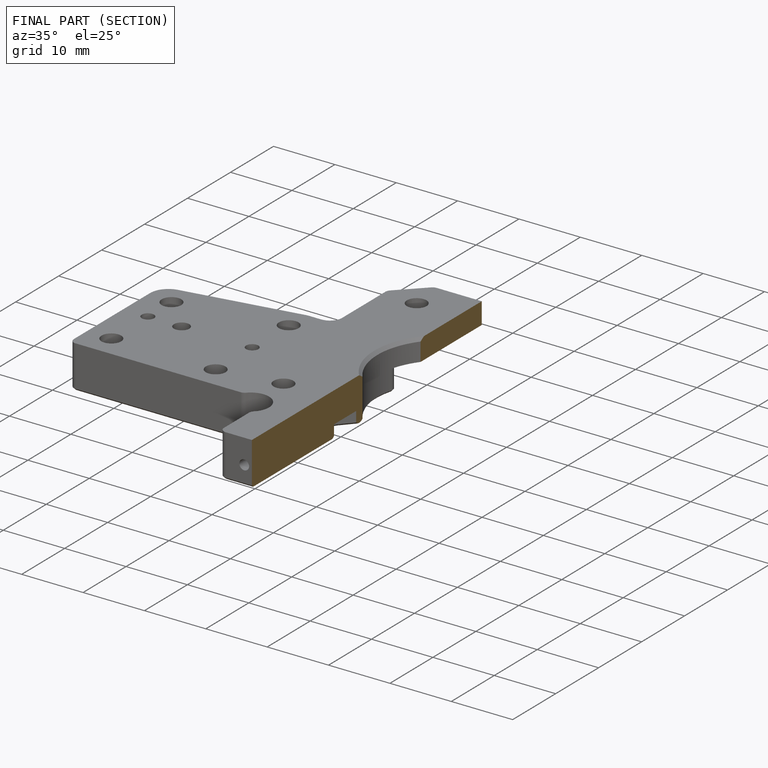
[diagram: finished part — half-section view (interior)]
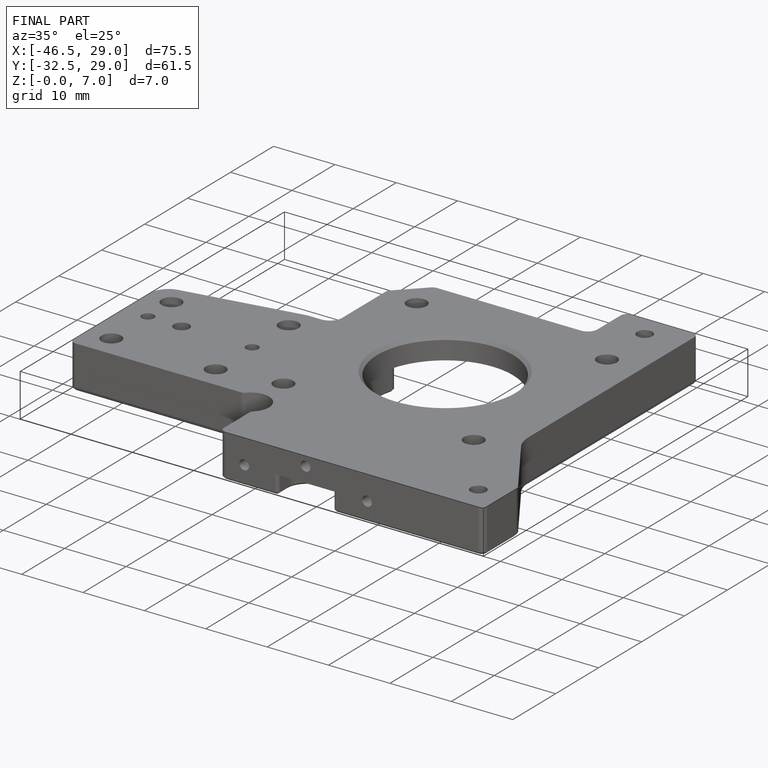
[diagram: finished part — iso view with bounding-box wireframe]
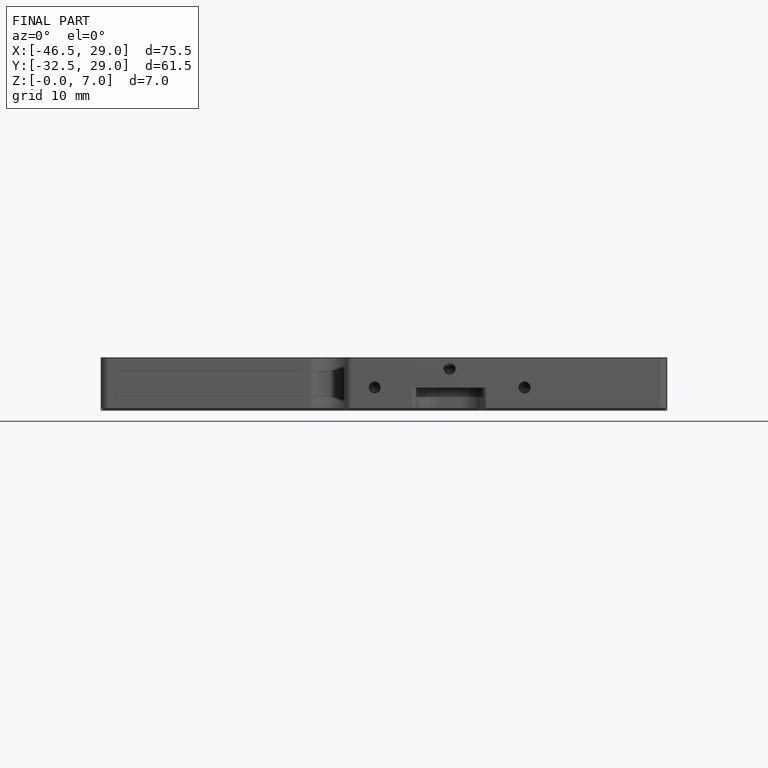
[diagram: finished part — front view with bounding-box wireframe]
